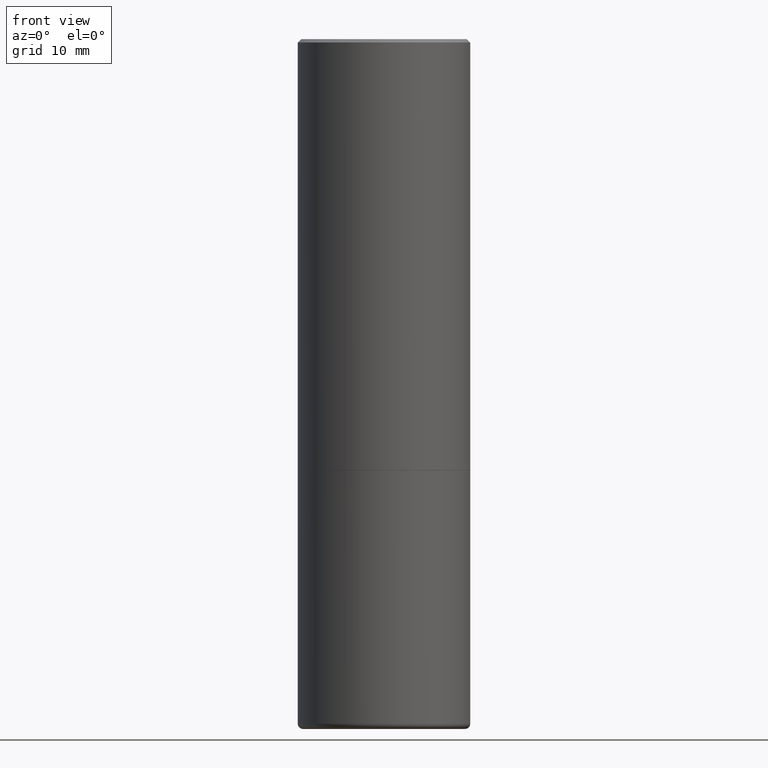
[diagram: clean part render]
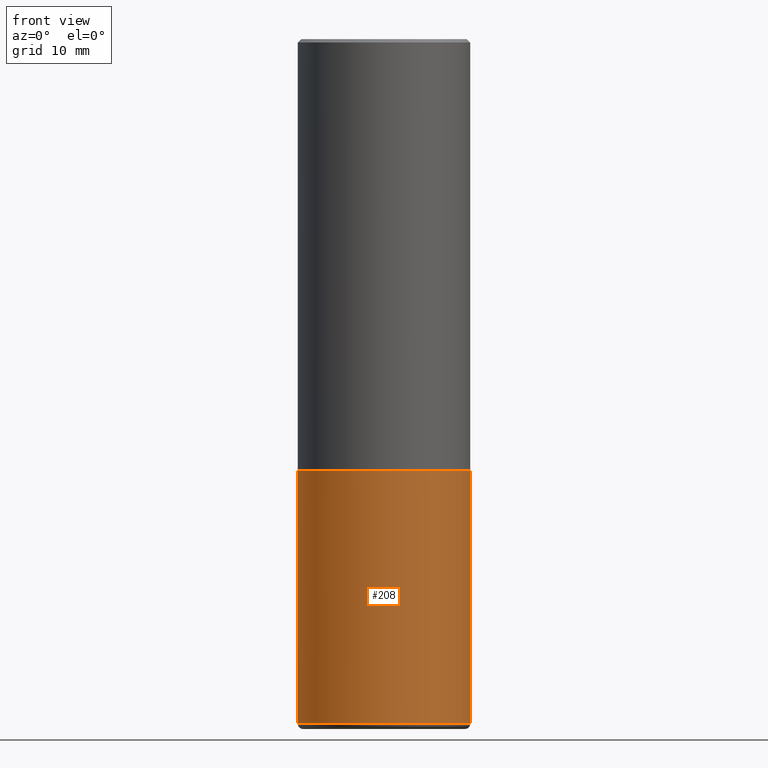
[diagram: same view with one face highlighted and labeled with its STEP entity id]
A machine part, front view. The second image highlights one B-rep face of the part: STEP entity #208.
In plain terms, the highlighted cylindrical surface (partial cylindrical patch) has radius 12.7 mm, axis along (-0, 0, 1).
Its self-contained STEP definition (entity closure, byte-faithful):
#4 = DIRECTION ( 'NONE',  ( 1.000000000000000000, -6.982962677686266711E-15, 4.876176775795935793E-29 ) ) ;
#33 = CARTESIAN_POINT ( 'NONE',  ( 0.5000000000000000000, -1.735266225405042074E-14, -3.970000000000000195 ) ) ;
#34 = VERTEX_POINT ( 'NONE', #123 ) ;
#42 = CARTESIAN_POINT ( 'NONE',  ( 6.113672015462842613E-29, -8.728703347107864943E-15, -2.500000000000000000 ) ) ;
#53 = CARTESIAN_POINT ( 'NONE',  ( -0.5000000000000000000, -7.742228452357075234E-15, -2.500000000000000000 ) ) ;
#64 = CARTESIAN_POINT ( 'NONE',  ( 0.5000000000000000000, -1.222018468595099830E-14, -2.500000000000000000 ) ) ;
#69 = DIRECTION ( 'NONE',  ( 1.000000000000000000, -6.982962677686269077E-15, 0.000000000000000000 ) ) ;
#73 = EDGE_CURVE ( 'NONE', #34, #140, #417, .T. ) ;
#74 = VECTOR ( 'NONE', #373, 39.37007874015748143 ) ;
#89 = VERTEX_POINT ( 'NONE', #64 ) ;
#92 = DIRECTION ( 'NONE',  ( -2.445468806185136877E-29, 3.491481338843145188E-15, 1.000000000000000000 ) ) ;
#95 = EDGE_CURVE ( 'NONE', #140, #89, #285, .T. ) ;
#104 = FACE_OUTER_BOUND ( 'NONE', #197, .T. ) ;
#123 = CARTESIAN_POINT ( 'NONE',  ( -0.5000000000000000000, -1.030846723640678645E-14, -3.970000000000000195 ) ) ;
#140 = VERTEX_POINT ( 'NONE', #33 ) ;
#146 = ORIENTED_EDGE ( 'NONE', *, *, #73, .T. ) ;
#159 = AXIS2_PLACEMENT_3D ( 'NONE', #231, #365, #4 ) ;
#177 = CARTESIAN_POINT ( 'NONE',  ( -0.5000000000000000000, 3.552713678800500929E-15, -2.459467545127452891E-29 ) ) ;
#180 = LINE ( 'NONE', #177, #74 ) ;
#197 = EDGE_LOOP ( 'NONE', ( #283, #146, #346, #406 ) ) ;
#208 = ADVANCED_FACE ( 'NONE', ( #104 ), #337, .T. ) ;
#231 = CARTESIAN_POINT ( 'NONE',  ( 0.000000000000000000, 0.000000000000000000, 0.000000000000000000 ) ) ;
#251 = CARTESIAN_POINT ( 'NONE',  ( 0.5000000000000000000, -3.491481338843133355E-15, 2.438088387897967896E-29 ) ) ;
#283 = ORIENTED_EDGE ( 'NONE', *, *, #392, .F. ) ;
#285 = LINE ( 'NONE', #251, #303 ) ;
#295 = DIRECTION ( 'NONE',  ( 1.000000000000000000, -6.982962677686266711E-15, 0.000000000000000000 ) ) ;
#303 = VECTOR ( 'NONE', #92, 39.37007874015748143 ) ;
#304 = EDGE_CURVE ( 'NONE', #378, #89, #331, .T. ) ;
#320 = DIRECTION ( 'NONE',  ( -2.445468806185136597E-29, 3.491481338843145583E-15, 1.000000000000000000 ) ) ;
#331 = CIRCLE ( 'NONE', #380, 0.5000000000000000000 ) ;
#332 = DIRECTION ( 'NONE',  ( -2.445468806185136597E-29, 3.491481338843145583E-15, 1.000000000000000000 ) ) ;
#337 = CYLINDRICAL_SURFACE ( 'NONE', #159, 0.5000000000000000000 ) ;
#346 = ORIENTED_EDGE ( 'NONE', *, *, #95, .T. ) ;
#365 = DIRECTION ( 'NONE',  ( -2.445468806185136597E-29, 3.491481338843145583E-15, 1.000000000000000000 ) ) ;
#373 = DIRECTION ( 'NONE',  ( -2.445468806185136877E-29, 3.491481338843145188E-15, 1.000000000000000000 ) ) ;
#378 = VERTEX_POINT ( 'NONE', #53 ) ;
#380 = AXIS2_PLACEMENT_3D ( 'NONE', #42, #332, #69 ) ;
#391 = AXIS2_PLACEMENT_3D ( 'NONE', #413, #320, #295 ) ;
#392 = EDGE_CURVE ( 'NONE', #34, #378, #180, .T. ) ;
#406 = ORIENTED_EDGE ( 'NONE', *, *, #304, .F. ) ;
#413 = CARTESIAN_POINT ( 'NONE',  ( 9.708511160554992872E-29, -1.386118091520728738E-14, -3.970000000000000195 ) ) ;
#417 = CIRCLE ( 'NONE', #391, 0.5000000000000000000 ) ;